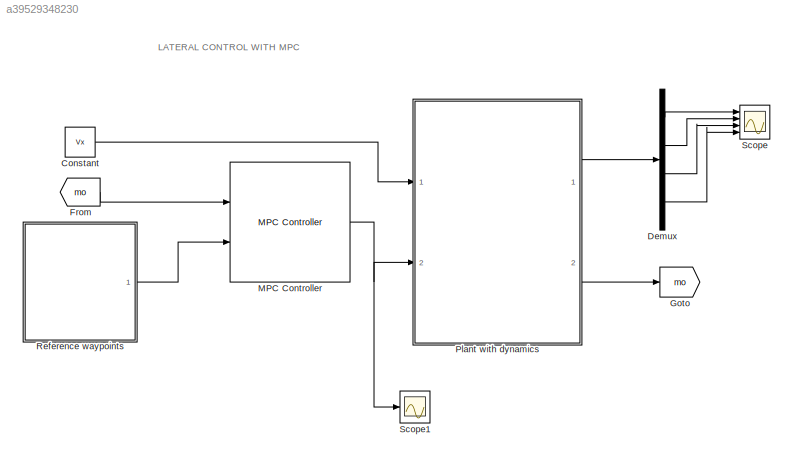
MODEL slx_a39529348230
KIND model
CONFIG AbsTol = auto
CONFIG EnableMultiTasking = off
CONFIG FixedStep = auto
CONFIG MaxStep = auto
CONFIG MinStep = auto
CONFIG RelTol = 1e-3
CONFIG SampleTimeConstraint = Unconstrained
CONFIG SolverName = VariableStepAuto
CONFIG StartTime = 0.0
CONFIG StopTime = T_lane
BLOCK [Constant] Constant
  Value = Vx
BLOCK [Demux] Demux
  Ports = [1, 4]
BLOCK [From] From
  GotoTag = mo
BLOCK [Goto] Goto
  GotoTag = mo
BLOCK [Reference] MPC Controller  REF=mpclib/MPC Controller  (lib defined in mdl_ae329e0e0455)
  Ports = [2, 1]
  SCDEnableBlockLinearizationSpecification = on
  SourceBlock = mpclib/MPC Controller
  SourceProductBaseCode = MP
  SourceType = MPC
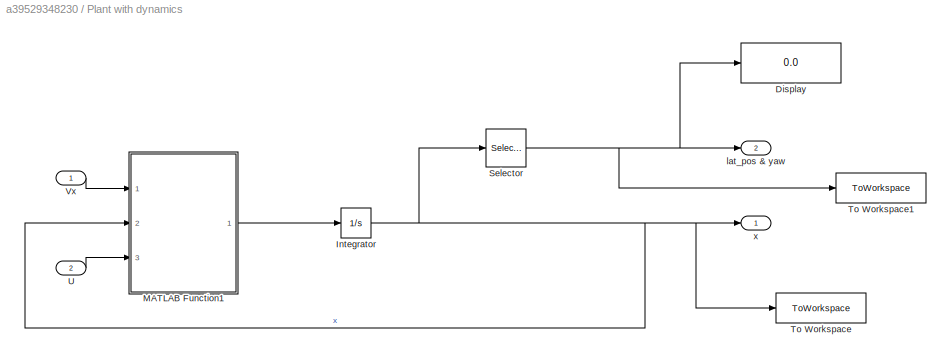
BLOCK [SubSystem] Plant with dynamics
  Ports = [2, 2]
  RequestExecContextInheritance = off
BLOCK [Display] Plant with dynamics/Display
  Decimation = 1
  Ports = [1]
BLOCK [Integrator] Plant with dynamics/Integrator
  Ports = [1, 1]
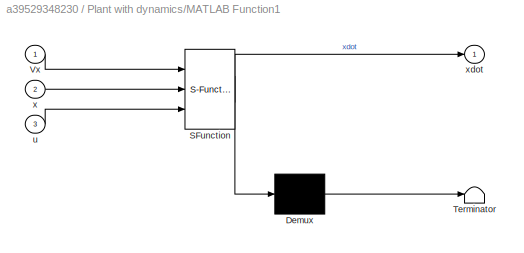
BLOCK [SubSystem] Plant with dynamics/MATLAB Function1
  ErrorFcn = Stateflow.Translate.translate
  PermitHierarchicalResolution = ExplicitOnly
  Ports = [3, 1]
  RequestExecContextInheritance = off
  SFBlockType = MATLAB Function
  TreatAsAtomicUnit = on
BLOCK [Demux] Plant with dynamics/MATLAB Function1/ Demux 
  Outputs = 1
  Ports = [1, 1]
BLOCK [S-Function] Plant with dynamics/MATLAB Function1/ SFunction 
  EnableBusSupport = on
  FunctionName = sf_sfun
  PortCounts = [3 2]
  Ports = [3, 2]
  SFcnIsStateOwnerBlock = off
  SFunctionDeploymentMode = off
  Tag = Stateflow S-Function 1
BLOCK [Terminator] Plant with dynamics/MATLAB Function1/ Terminator 
BLOCK [Inport] Plant with dynamics/MATLAB Function1/Vx
BLOCK [Inport] Plant with dynamics/MATLAB Function1/u
  Port = 3
BLOCK [Inport] Plant with dynamics/MATLAB Function1/x
  Port = 2
BLOCK [Outport] Plant with dynamics/MATLAB Function1/xdot
BLOCK [Selector] Plant with dynamics/Selector
  IndexOptions = Index vector (dialog)
  Indices = [1 3]
  InputPortWidth = 4
  OutputSizes = 1
  Ports = [1, 1]
BLOCK [ToWorkspace] Plant with dynamics/To Workspace
  FixptAsFi = on
  MaxDataPoints = inf
  Ports = [1]
  SampleTime = -1
  VariableName = x_state
BLOCK [ToWorkspace] Plant with dynamics/To Workspace1
  FixptAsFi = on
  MaxDataPoints = inf
  Ports = [1]
  SampleTime = -1
  VariableName = lat_yaw_state
BLOCK [Inport] Plant with dynamics/U
  Port = 2
BLOCK [Inport] Plant with dynamics/Vx
BLOCK [Outport] Plant with dynamics/lat_pos & yaw
  Port = 2
BLOCK [Outport] Plant with dynamics/x
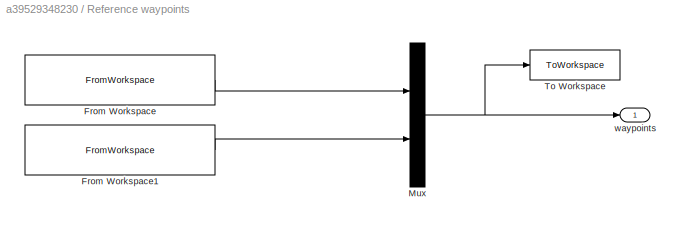
BLOCK [SubSystem] Reference waypoints
  Ports = [0, 1]
  RequestExecContextInheritance = off
BLOCK [FromWorkspace] Reference waypoints/From Workspace
  SampleTime = 0.1
  VariableName = [tRef',yRef']
BLOCK [FromWorkspace] Reference waypoints/From Workspace1
  SampleTime = 0.1
  VariableName = [tRef',yawRef']
BLOCK [Mux] Reference waypoints/Mux
  DisplayOption = bar
  Inputs = 2
  Ports = [2, 1]
BLOCK [ToWorkspace] Reference waypoints/To Workspace
  FixptAsFi = on
  MaxDataPoints = inf
  Ports = [1]
  SampleTime = -1
  VariableName = ref_points
BLOCK [Outport] Reference waypoints/waypoints
BLOCK [Scope] Scope
  Floating = off
  NumInputPorts = 4
  Ports = [4]
  ScopeSpecificationString = Simulink.scopes.TimeScopeBlockCfg('CurrentConfiguration', extmgr.ConfigurationSet(extmgr.Configuration('Core','General UI',true),extmgr.Configuration('Core','Source UI',true),extmgr.Configuration('Sources','WiredSimulink',true,'DataLoggingVariableName','ScopeData1'),extmgr.Configuration('Visuals','Time Domain',true,'SerializedDisplays',{struct('MinYLimReal','-0.43654','MaxYLimReal','3.92886','YLab...<+3423ch>
BLOCK [Scope] Scope1
  Floating = off
  NumInputPorts = 1
  Ports = [1]
  ScopeSpecificationString = Simulink.scopes.TimeScopeBlockCfg('CurrentConfiguration', extmgr.ConfigurationSet(extmgr.Configuration('Core','General UI',true),extmgr.Configuration('Core','Source UI',true),extmgr.Configuration('Sources','WiredSimulink',true),extmgr.Configuration('Visuals','Time Domain',true,'SerializedDisplays',{struct('MinYLimReal','-0.6545','MaxYLimReal','0.6545','YLabelReal','','MinYLimMag','0.00000','MaxYLi...<+1355ch>
ANNOTATION (root): LATERAL CONTROL WITH MPC
LINE Constant:1 -> Plant with dynamics:1
LINE Demux:1 -> Scope:1
LINE Demux:2 -> Scope:2
LINE Demux:3 -> Scope:3
LINE Demux:4 -> Scope:4
LINE From:1 -> MPC Controller:1
NET MPC Controller:1 -> Plant with dynamics:2, Scope1:1
NET Plant with dynamics/Integrator:1 -> Plant with dynamics/MATLAB Function1:2, Plant with dynamics/Selector:1, Plant with dynamics/To Workspace:1, Plant with dynamics/x:1
LINE Plant with dynamics/MATLAB Function1:1 -> Plant with dynamics/Integrator:1
NET Plant with dynamics/Selector:1 -> Plant with dynamics/Display:1, Plant with dynamics/To Workspace1:1, Plant with dynamics/lat_pos & yaw:1
LINE Plant with dynamics/U:1 -> Plant with dynamics/MATLAB Function1:3
LINE Plant with dynamics/Vx:1 -> Plant with dynamics/MATLAB Function1:1
LINE Plant with dynamics:1 -> Demux:1
LINE Plant with dynamics:2 -> Goto:1
LINE Reference waypoints/From Workspace1:1 -> Reference waypoints/Mux:2
LINE Reference waypoints/From Workspace:1 -> Reference waypoints/Mux:1
NET Reference waypoints/Mux:1 -> Reference waypoints/To Workspace:1, Reference waypoints/waypoints:1
LINE Reference waypoints:1 -> MPC Controller:2
note: NET lines group one-source signal fan-out (src -> all destinations, sorted); 1:1 wires keep LINE
CHART Plant with dynamics/MATLAB Function1 states=1 transitions=1
  STATE_LABEL 'eML_blk_kernel()'
  STATE_LABEL 'SCRIPT:\nfunction xdot = fcn(Vx,x,u)\n\n%% Model parameters\nm = 1140;\nI_z = 1436.24; %kgm2\nl_f = 1.165; \nl_r = 1.165;\nc_f = 155494.663;\nc_r = 1554494.663;\n\n% assuming constant velocity\nv_x = Vx; %mps\n%% Dynamic bicycle model \n%continous A B C D matrixes\nA = [0 1 Vx 0;\n     0 -2*(c_f+c_r)/(m*v_x) 0 -2*(l_f*c_f + l_r*c_r)/(m*v_x) - v_x;\n     0 0 0 1;\n     0 2*(l_r*c_r - l_f*c_f)/(I_z*v_x)  0  -2*(l_r^2...<+145ch>'
CHART  states=0 transitions=0
